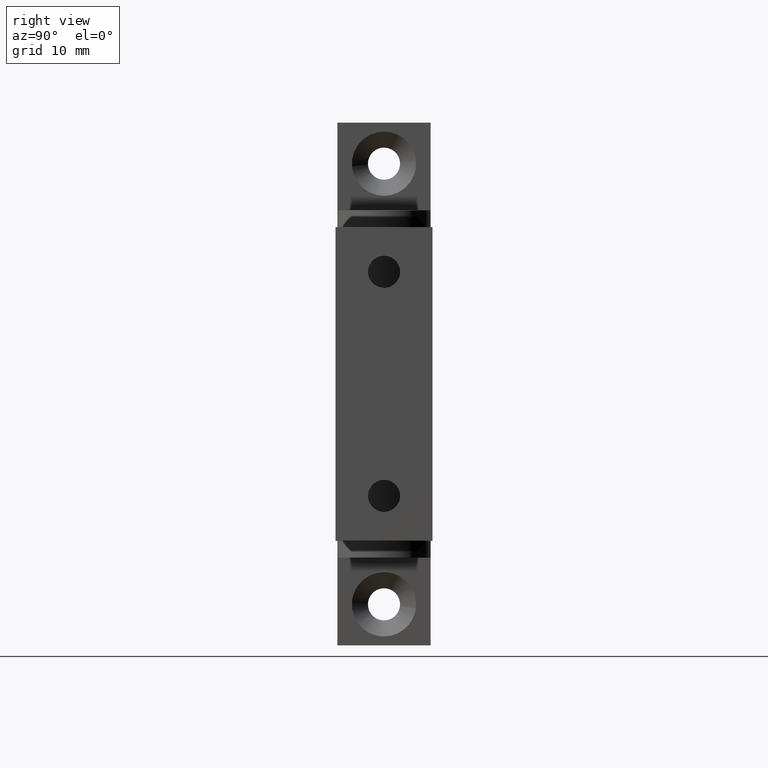
[diagram: clean part render]
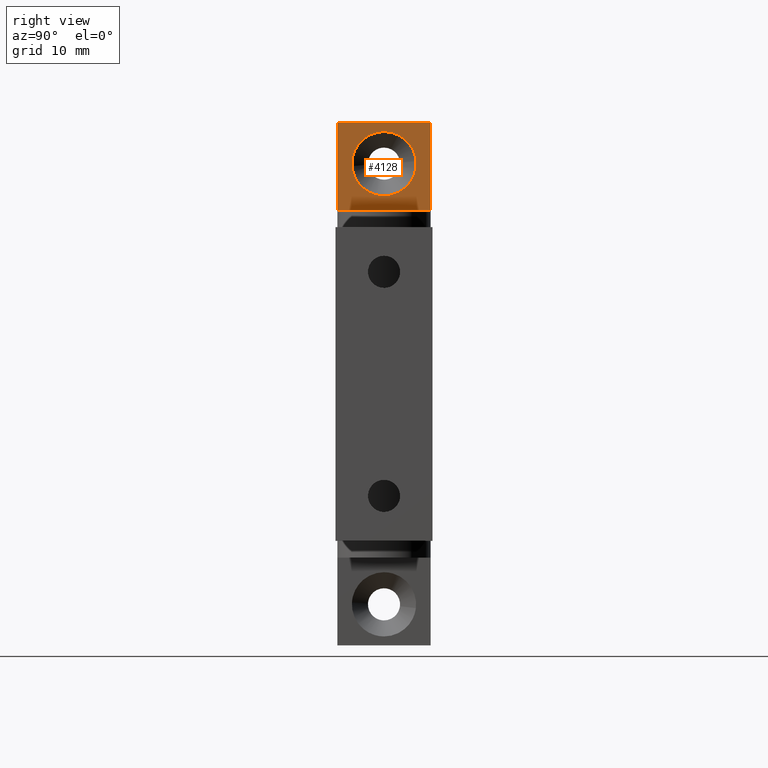
[diagram: same view with one face highlighted and labeled with its STEP entity id]
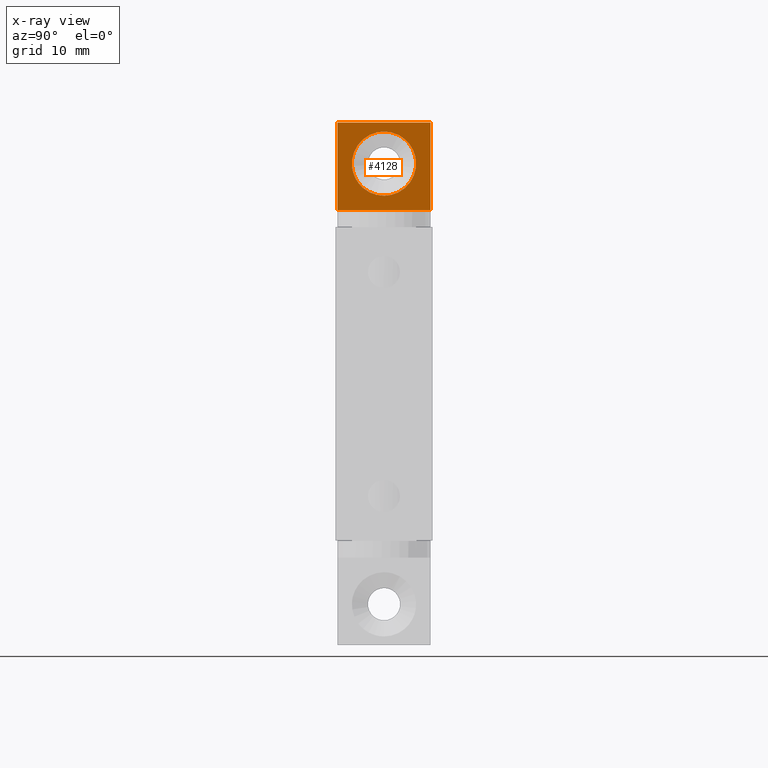
[diagram: x-ray of the same camera — body ghosted, the highlighted face saturated]
A machine part, right view. The second image highlights one B-rep face of the part: STEP entity #4128.
The next image is the same camera in x-ray: the body ghosted, the highlighted face saturated — about 0% of this face is hidden behind the body in this view.
In plain terms, the highlighted face is a freeform B-spline surface patch.
Its self-contained STEP definition (entity closure, byte-faithful):
#3367=CARTESIAN_POINT('',(3.000000000000175,4.286744535052518,29.837274111631089));
#3368=VERTEX_POINT('',#3367);
#3374=CARTESIAN_POINT('',(3.0,0.0,33.799900000000001));
#3375=VERTEX_POINT('',#3374);
#3376=CARTESIAN_POINT('',(3.0,0.0,33.799900000000001));
#3377=CARTESIAN_POINT('',(3.000000000000000,3.974879114127792,33.799900000000001));
#3378=CARTESIAN_POINT('',(3.000000000000175,4.286744535052518,29.837274111631093));
#3386=(BOUNDED_CURVE()B_SPLINE_CURVE(2,(#3376,#3377,#3378),.UNSPECIFIED.,.F.,.U.)B_SPLINE_CURVE_WITH_KNOTS((3,3),(0.0,0.236331300632660),.UNSPECIFIED.)CURVE()GEOMETRIC_REPRESENTATION_ITEM()RATIONAL_B_SPLINE_CURVE((1.0,0.723120658605322,0.969723356171591))REPRESENTATION_ITEM(''));
#3387=EDGE_CURVE('',#3375,#3368,#3386,.T.);
#3389=CARTESIAN_POINT('',(3.000000000000175,-4.286744535052518,29.162525888368911));
#3390=VERTEX_POINT('',#3389);
#3391=CARTESIAN_POINT('',(3.000000000000175,-4.286744535052518,29.162525888368911));
#3392=CARTESIAN_POINT('',(3.000000000000000,-4.300000000000000,29.330952539865674));
#3393=CARTESIAN_POINT('',(3.0,-4.300000000000000,29.499900000000000));
#3394=CARTESIAN_POINT('',(3.000000000000000,-4.300000000000000,33.799900000000008));
#3395=CARTESIAN_POINT('',(3.0,0.0,33.799900000000001));
#3403=(BOUNDED_CURVE()B_SPLINE_CURVE(2,(#3391,#3392,#3393,#3394,#3395),.UNSPECIFIED.,.F.,.U.)B_SPLINE_CURVE_WITH_KNOTS((3,2,3),(0.736331300632660,0.750000000000000,1.0),.UNSPECIFIED.)CURVE()GEOMETRIC_REPRESENTATION_ITEM()RATIONAL_B_SPLINE_CURVE((0.969723356171592,0.983986122581225,1.0,0.707106781186547,1.0))REPRESENTATION_ITEM(''));
#3404=EDGE_CURVE('',#3390,#3375,#3403,.T.);
#3441=CARTESIAN_POINT('',(3.0,0.0,25.199900000000000));
#3442=VERTEX_POINT('',#3441);
#3443=CARTESIAN_POINT('',(3.0,0.0,25.199900000000000));
#3444=CARTESIAN_POINT('',(3.000000000000000,-3.974879114127792,25.199899999999992));
#3445=CARTESIAN_POINT('',(3.000000000000175,-4.286744535052518,29.162525888368908));
#3453=(BOUNDED_CURVE()B_SPLINE_CURVE(2,(#3443,#3444,#3445),.UNSPECIFIED.,.F.,.U.)B_SPLINE_CURVE_WITH_KNOTS((3,3),(0.500000000000000,0.736331300632660),.UNSPECIFIED.)CURVE()GEOMETRIC_REPRESENTATION_ITEM()RATIONAL_B_SPLINE_CURVE((1.0,0.723120658605322,0.969723356171591))REPRESENTATION_ITEM(''));
#3454=EDGE_CURVE('',#3442,#3390,#3453,.T.);
#3456=CARTESIAN_POINT('',(3.000000000000175,4.286744535052518,29.837274111631093));
#3457=CARTESIAN_POINT('',(3.0,4.299999999999999,29.668847460134323));
#3458=CARTESIAN_POINT('',(3.0,4.300000000000000,29.499900000000000));
#3459=CARTESIAN_POINT('',(3.000000000000000,4.300000000000000,25.199900000000007));
#3460=CARTESIAN_POINT('',(3.0,0.0,25.199900000000000));
#3468=(BOUNDED_CURVE()B_SPLINE_CURVE(2,(#3456,#3457,#3458,#3459,#3460),.UNSPECIFIED.,.F.,.U.)B_SPLINE_CURVE_WITH_KNOTS((3,2,3),(0.236331300632660,0.250000000000000,0.500000000000000),.UNSPECIFIED.)CURVE()GEOMETRIC_REPRESENTATION_ITEM()RATIONAL_B_SPLINE_CURVE((0.969723356171591,0.983986122581225,1.0,0.707106781186547,1.0))REPRESENTATION_ITEM(''));
#3469=EDGE_CURVE('',#3368,#3442,#3468,.T.);
#3864=CARTESIAN_POINT('',(3.0,6.250000000000000,34.999899999999997));
#3865=VERTEX_POINT('',#3864);
#3871=CARTESIAN_POINT('',(3.0,6.250000000000000,23.249900000000000));
#3872=VERTEX_POINT('',#3871);
#3873=CARTESIAN_POINT('',(3.0,6.250000000000000,23.249900000000000));
#3874=CARTESIAN_POINT('',(3.0,6.250000000000000,34.999899999999997));
#3875=QUASI_UNIFORM_CURVE('',1,(#3873,#3874),.UNSPECIFIED.,.F.,.U.);
#3876=EDGE_CURVE('',#3872,#3865,#3875,.T.);
#3932=CARTESIAN_POINT('',(3.0,-6.250000000000000,23.249900000000000));
#3933=VERTEX_POINT('',#3932);
#3939=CARTESIAN_POINT('',(3.0,-6.250000000000000,34.999899999999997));
#3940=VERTEX_POINT('',#3939);
#3941=CARTESIAN_POINT('',(3.0,-6.250000000000000,23.249900000000000));
#3942=CARTESIAN_POINT('',(3.0,-6.250000000000000,34.999899999999997));
#3943=QUASI_UNIFORM_CURVE('',1,(#3941,#3942),.UNSPECIFIED.,.F.,.U.);
#3944=EDGE_CURVE('',#3933,#3940,#3943,.T.);
#3982=CARTESIAN_POINT('',(3.0,-6.250000000000000,23.249900000000000));
#3983=CARTESIAN_POINT('',(3.0,6.250000000000000,23.249900000000000));
#3984=QUASI_UNIFORM_CURVE('',1,(#3982,#3983),.UNSPECIFIED.,.F.,.U.);
#3985=EDGE_CURVE('',#3933,#3872,#3984,.T.);
#4103=CARTESIAN_POINT('',(3.0,-6.250000000000000,34.999899999999997));
#4104=CARTESIAN_POINT('',(3.0,6.250000000000000,34.999899999999997));
#4105=QUASI_UNIFORM_CURVE('',1,(#4103,#4104),.UNSPECIFIED.,.F.,.U.);
#4106=EDGE_CURVE('',#3940,#3865,#4105,.T.);
#4111=CARTESIAN_POINT('',(3.0,-6.874374975772575,22.662988252898671));
#4112=CARTESIAN_POINT('',(3.0,-6.874374975772575,35.586813638058679));
#4113=CARTESIAN_POINT('',(3.0,6.874375311048702,22.662988252898671));
#4114=CARTESIAN_POINT('',(3.0,6.874375311048702,35.586813638058679));
#4115=B_SPLINE_SURFACE_WITH_KNOTS('',1,1,((#4111,#4113),(#4112,#4114)),.UNSPECIFIED.,.F.,.F.,.U.,(2,2),(2,2),(0.0,12.923825385160010),(0.0,13.748750286821281),.UNSPECIFIED.);
#4116=ORIENTED_EDGE('',*,*,#3876,.T.);
#4117=ORIENTED_EDGE('',*,*,#4106,.F.);
#4118=ORIENTED_EDGE('',*,*,#3944,.F.);
#4119=ORIENTED_EDGE('',*,*,#3985,.T.);
#4120=EDGE_LOOP('',(#4116,#4117,#4118,#4119));
#4121=FACE_OUTER_BOUND('',#4120,.T.);
#4122=ORIENTED_EDGE('',*,*,#3454,.T.);
#4123=ORIENTED_EDGE('',*,*,#3404,.T.);
#4124=ORIENTED_EDGE('',*,*,#3387,.T.);
#4125=ORIENTED_EDGE('',*,*,#3469,.T.);
#4126=EDGE_LOOP('',(#4122,#4123,#4124,#4125));
#4127=FACE_BOUND('',#4126,.T.);
#4128=ADVANCED_FACE('',(#4121,#4127),#4115,.F.);